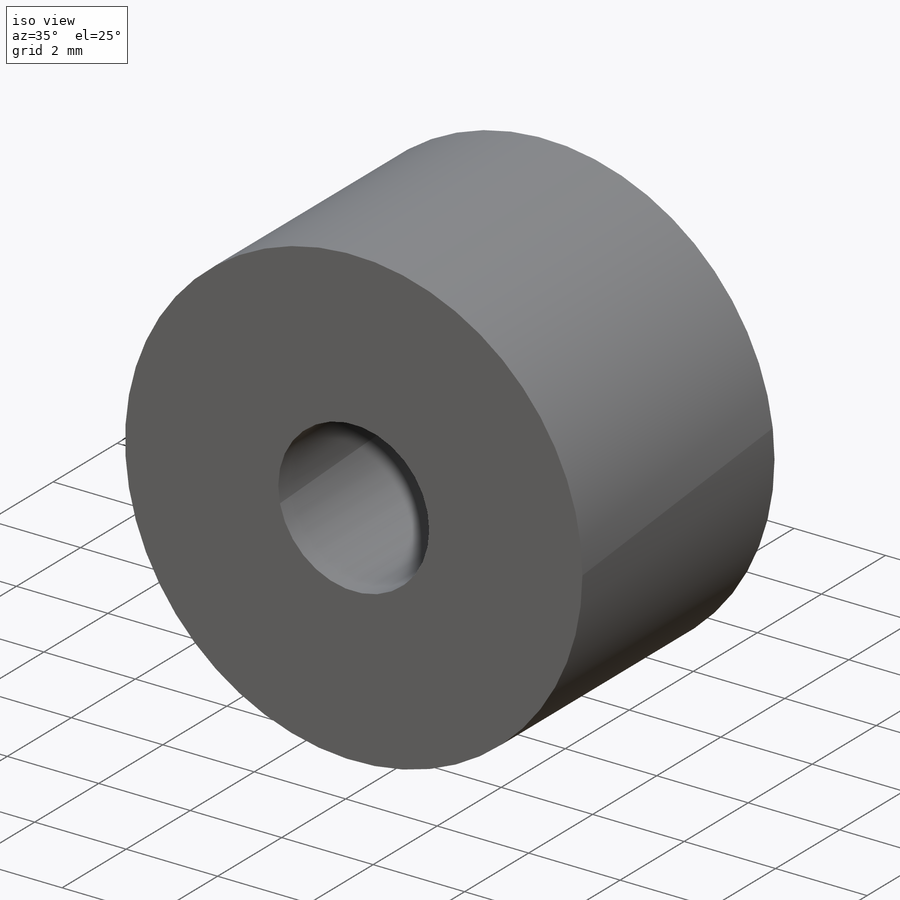
[diagram: iso view]
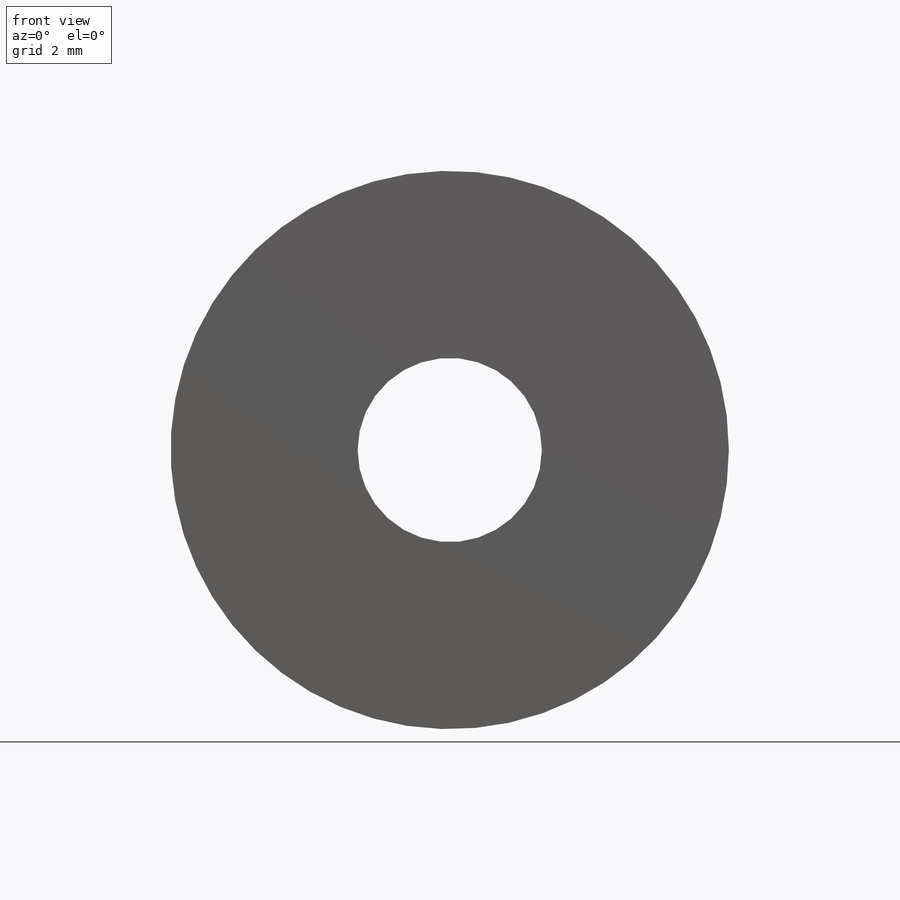
[diagram: front view]
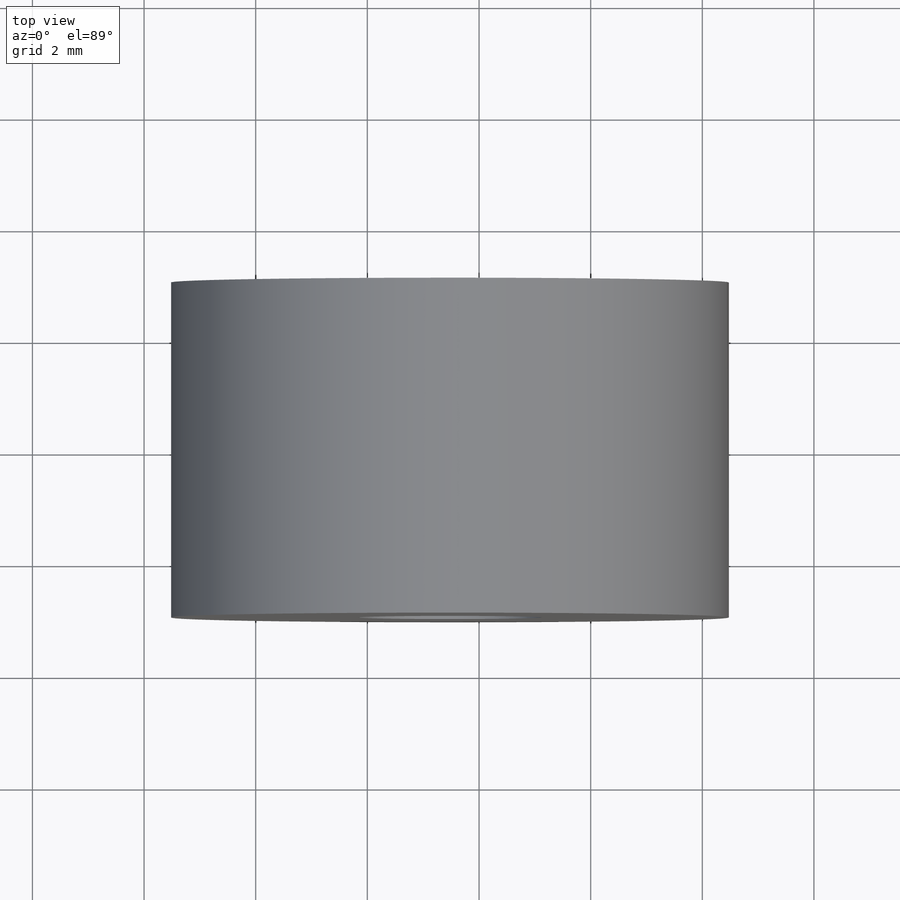
[diagram: top view]
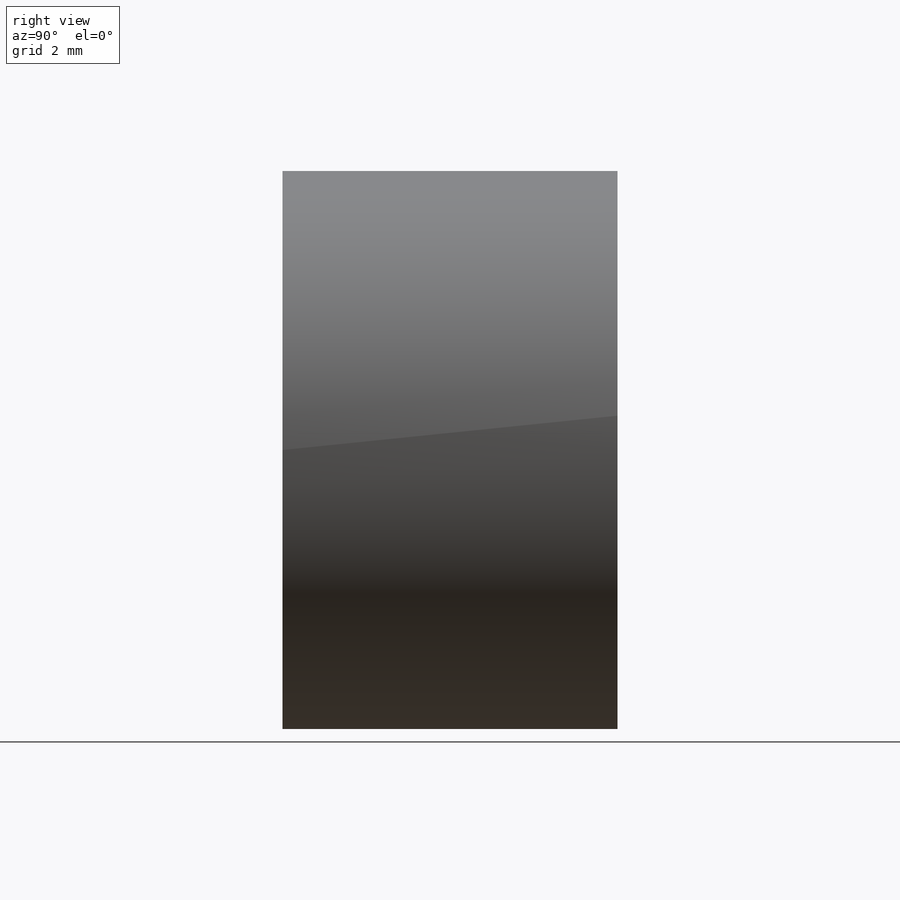
[diagram: right view]
SOLIDWORKS PART (.sldprt)
format: sldprt  version: not decoded by parser v0  size: 353,792 bytes
history: native  units: mm
features: plane x3, sketch x2, fillet x2, material x1, extrude x1, cut_extrude x1 + 2 further entries (+8 scaffold rows collapsed)
feature tree (20):
  scaffold x8  (default folders/planes/origin — collapsed)
  material  "材料 <指定なし>"
  "ｻｰﾌｪｽ ﾎﾞﾃﾞｨ"
  "ｿﾘｯﾄﾞ ﾎﾞﾃﾞｨ"
  plane  "正面"
  plane  "平面"
  plane  "右側面"
  sketch  "ｽｹｯﾁ1"  dims[c1.D1=~3.921168mm c1.D2=11.0mm c1.D3=~4.261142mm c1.D4=~256.919152mm c1.D6=3.3mm c1.D7=~6.697181mm c2.D1=~21.18298mm c2.D2=~25.066481mm c2.D3=230.0mm c2.D4=564.4702mm c2.D5=~389.315971mm c2.D7=~6.034636mm c3.D1=4.0]
  extrude  "ﾎﾞｽ - 押し出し1"  Depth=6mm
  fillet  "ﾌｨﾚｯﾄ1"  Radius=4mm
  fillet  "ﾌｨﾚｯﾄ2"  Radius=2mm
  sketch  "ｽｹｯﾁ2"  dims[D1=10.0mm]
  cut_extrude  "ｶｯﾄ - 押し出し1"  Depth=10mm
decode coverage: 6 of 6 modeling features carry decoded parameters; 2 rows unclassified (native names shown)
note: ~ marks probable driven/reference dimensions
note: suppression state not decoded; provenance and decode notes live in map.json
